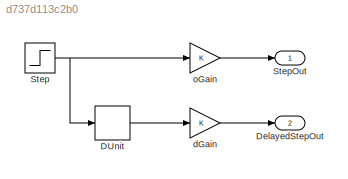
MODEL slx_d737d113c2b0
KIND model
CONFIG AbsTol = auto
CONFIG EnableMultiTasking = off
CONFIG FixedStep = .1
CONFIG MaxStep = auto
CONFIG MinStep = auto
CONFIG RelTol = 1e-3
CONFIG SampleTimeConstraint = Unconstrained
CONFIG SolverName = FixedStepDiscrete
CONFIG StartTime = 0.0
CONFIG StopTime = 10.0
WORKSPACE source: mxarray member
WORKSPACE delayedLen = 10
BLOCK [Delay] DUnit
  DelayLength = delayedLen
  InputPortMap = u0
BLOCK [Outport] DelayedStepOut
  Port = 2
  SignalName = delayedStepOut
BLOCK [Step] Step
  SampleTime = 0
BLOCK [Outport] StepOut
  SignalName = stepOut
BLOCK [Gain] dGain
BLOCK [Gain] oGain
LINE DUnit:1 -> dGain:1
NET Step:1 -> DUnit:1, oGain:1
LINE dGain:1 -> DelayedStepOut:1
LINE oGain:1 -> StepOut:1
note: NET lines group one-source signal fan-out (src -> all destinations, sorted); 1:1 wires keep LINE
